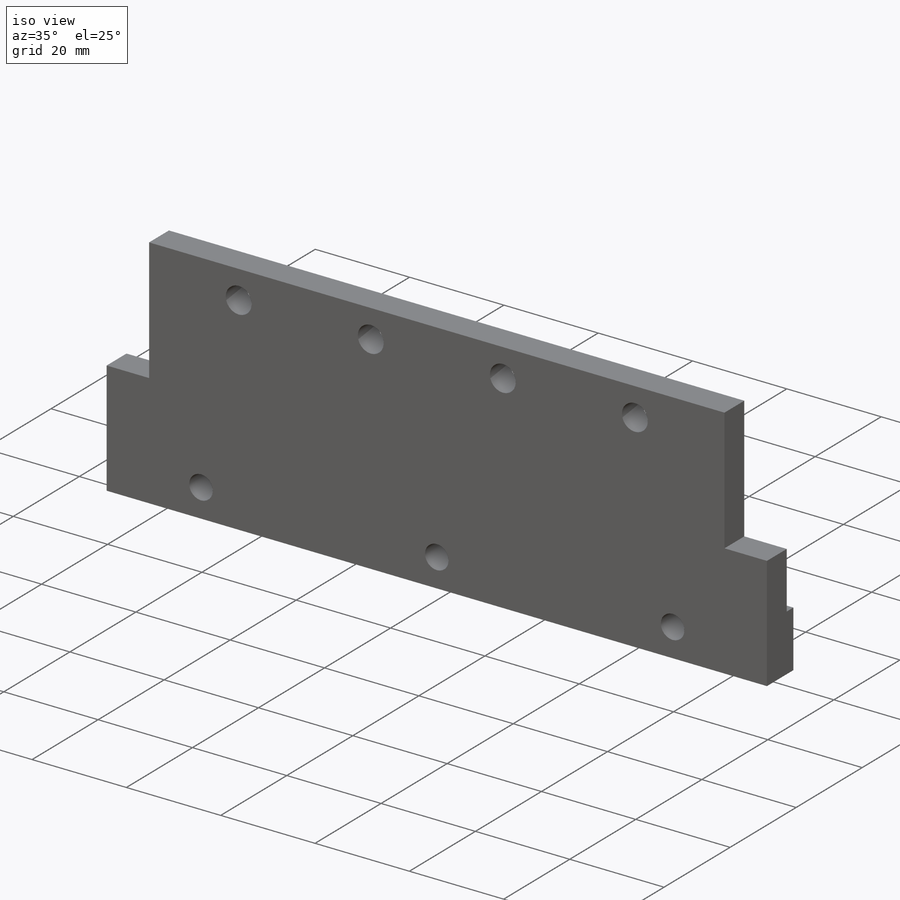
[diagram: iso view]
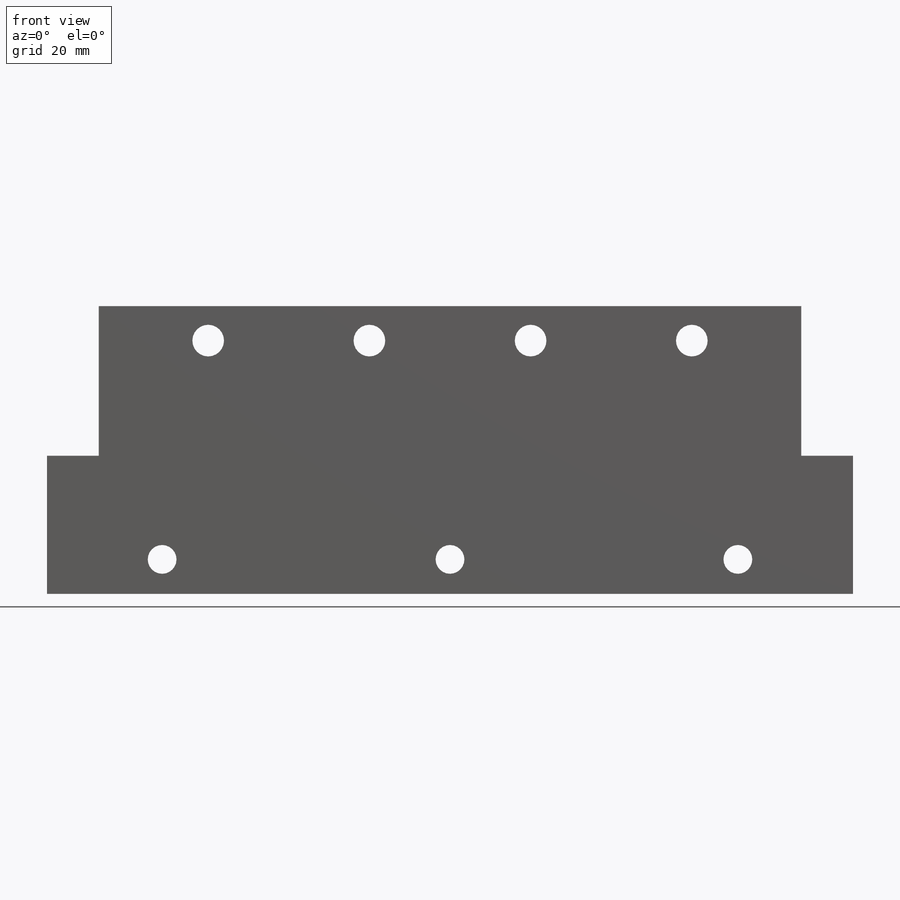
[diagram: front view]
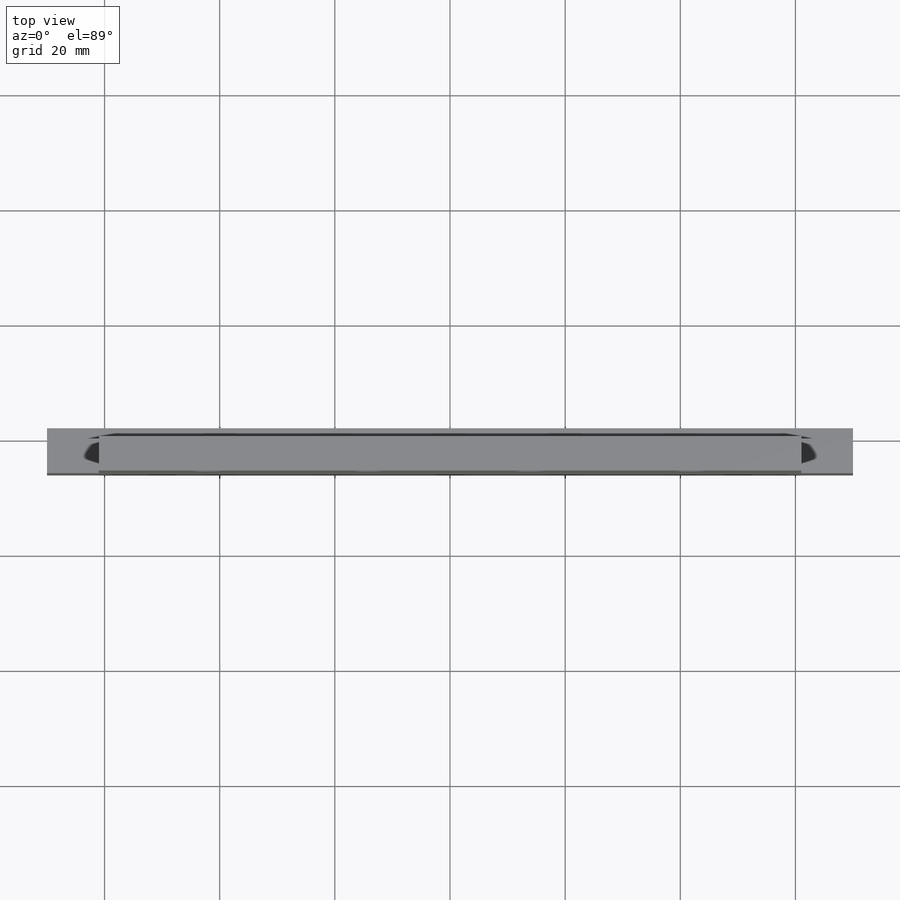
[diagram: top view]
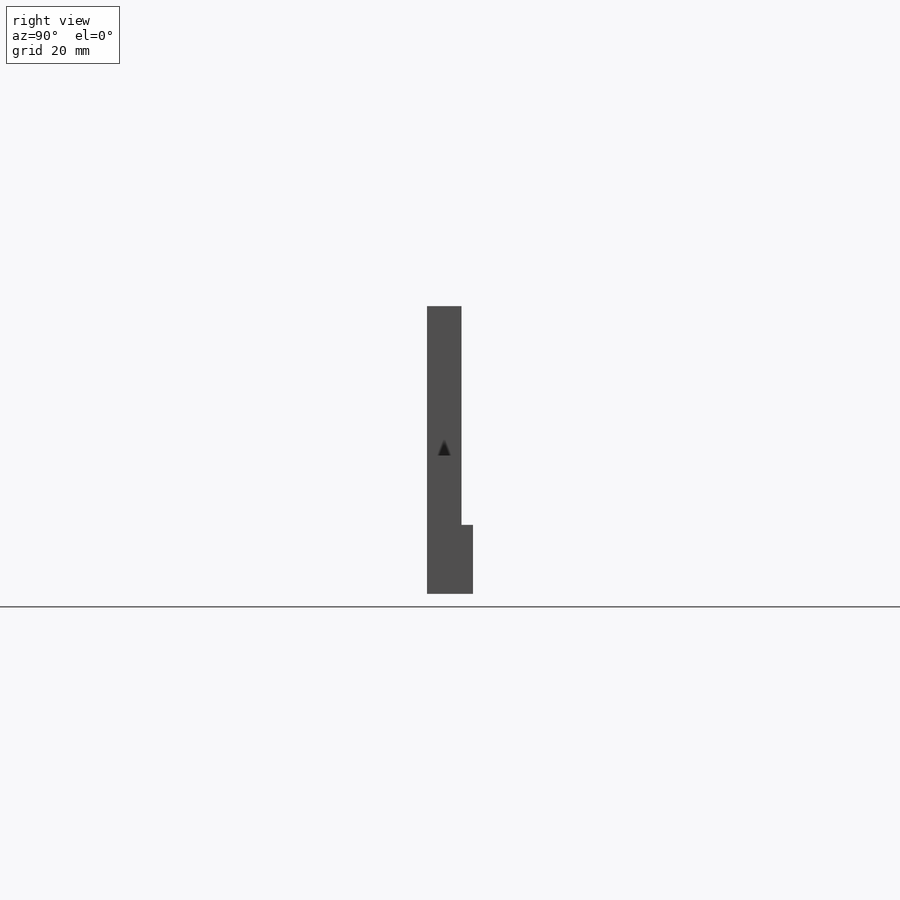
[diagram: right view]
SOLIDWORKS PART (.sldprt)
format: sldprt  version: not decoded by parser v0  size: 373,760 bytes
history: native  units: mm
features: sketch x7, plane x3, cut_extrude x3, thread x3, extrude x2, material x1, hole x1 + 4 further entries (+8 scaffold rows collapsed)
feature tree (32):
  scaffold x8  (default folders/planes/origin — collapsed)
  material  " 09Г2С ГОСТ 4543-71"
  plane  "Спереди"
  plane  "Сверху"
  plane  "Слева"
  "Начало координат"
  "PTricksFreeParameters"
  "PTricksEqu"
  "PTricksFreeParameters"
  sketch  "Эскиз1"  dims[c1.D4=~9.303432mm c1.D5=~9.303432mm c1.D6=~9.303432mm c1.D7=~9.303432mm c1.D8=5.5mm c1.D10=5.5mm c1.D1=50.0mm c1.D2=140.0mm c1.D3=28.0mm c2.D4=28.0mm c2.D5=28.0mm c2.D6=28.0mm c2.D7=28.0mm c2.D9=6.0mm c2.D10=3.25mm]
  extrude  "Вытянуть1"  Depth=6mm
  sketch  "Эскиз6"
  cut_extrude  "Вытянуть4"  [1 undecoded]
  sketch  "Эскиз7"  dims[D1=6.5mm]
  cut_extrude  "Вытянуть5"  [1 undecoded]
  sketch  "Эскиз5"  dims[D1=12.0mm]
  extrude  "Вытянуть3"  Depth=2mm
  hole  "Отверстие обработанное метчиком M6x1.01"  [1 undecoded]
  sketch  "Эскиз3"  dims[D1=6.0mm D2=50.0mm D3=50.0mm D4=20.0mm D5=20.0mm]
  sketch  "Эскиз2"  dims[hole-wizard template sketch: 55 standard entries collapsed; hole parameters kept: c17.Глубина проходного сверла=~8.000025mm c17.Диаметр задней зенковки=6.5mm c17.D4=~2.963249mm c17.Угол задней зенковки=90.0deg]
  thread  "Отверстие резьбы1"  Diameter=6mm  [1 undecoded]
  thread  "Отверстие резьбы2"  Diameter=6mm  [1 undecoded]
  thread  "Отверстие резьбы3"  Diameter=6mm  [1 undecoded]
  sketch  "Эскиз4"  dims[D1=26.0mm D2=9.0mm]
  cut_extrude  "Вытянуть2"  [1 undecoded]
decode coverage: 11 of 16 modeling features carry decoded parameters; 4 rows unclassified (native names shown)
note: ~ marks probable driven/reference dimensions
note: 7 parameter values undecoded
summary: no parameter record found for 4 features
note: suppression state not decoded; provenance and decode notes live in map.json
